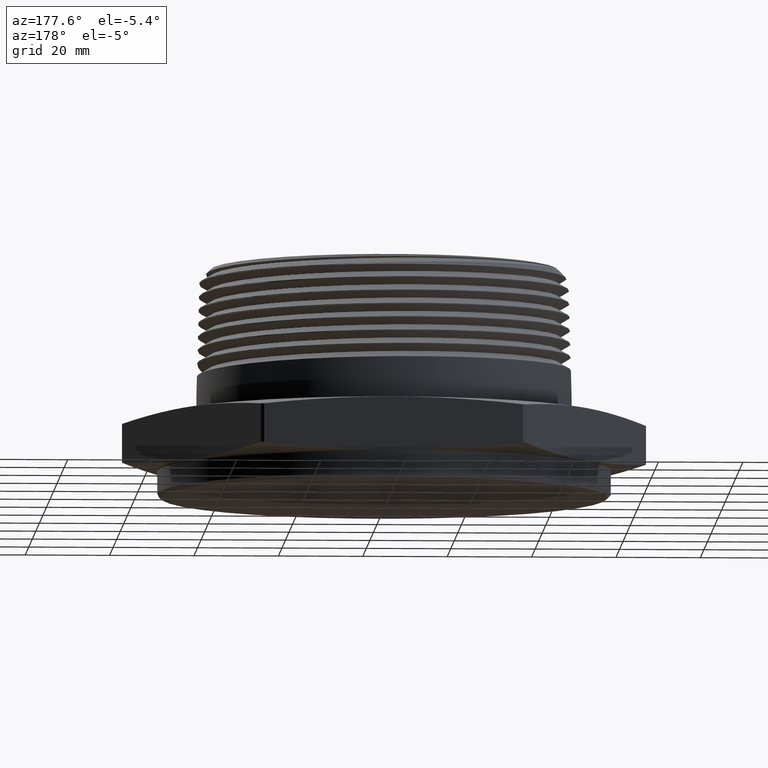
[diagram: clean part render]
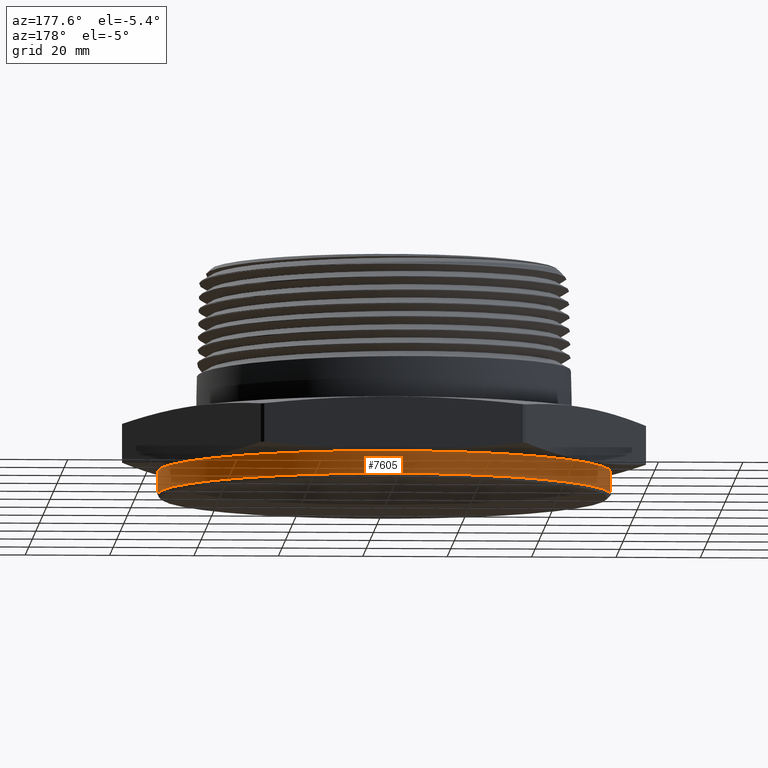
[diagram: same view with one face highlighted and labeled with its STEP entity id]
A machine part, auxiliary view. The second image highlights one B-rep face of the part: STEP entity #7605.
In plain terms, the highlighted cylindrical surface (partial cylindrical patch) has radius 53.721 mm, axis along (-0, -0, 1).
Its self-contained STEP definition (entity closure, byte-faithful):
#1075 = DIRECTION ( 'NONE',  ( 1.000000000000000000, 0.0000000000000000000, 0.0000000000000000000 ) ) ;
#1077 = CARTESIAN_POINT ( 'NONE',  ( 0.0000000000000000000, 0.0000000000000000000, -0.2500000000000000000 ) ) ;
#1078 = DIRECTION ( 'NONE',  ( -0.0000000000000000000, -0.0000000000000000000, 1.000000000000000000 ) ) ;
#1209 = CARTESIAN_POINT ( 'NONE',  ( 2.115000000000000200, 0.0000000000000000000, -0.008097840331950739700 ) ) ;
#1217 = CARTESIAN_POINT ( 'NONE',  ( -2.115000000000000200, 2.590127980196652600E-016, -0.2200000000000003100 ) ) ;
#1221 = CARTESIAN_POINT ( 'NONE',  ( -2.115000000000000200, 2.590127980196652600E-016, -0.008097840331950476000 ) ) ;
#1233 = CARTESIAN_POINT ( 'NONE',  ( 2.115000000000000200, 0.0000000000000000000, -0.2200000000000003100 ) ) ;
#1373 = EDGE_CURVE ( 'NONE', #7781, #7785, #7417, .T. ) ;
#1383 = EDGE_CURVE ( 'NONE', #7797, #7781, #7426, .T. ) ;
#1471 = EDGE_CURVE ( 'NONE', #7797, #7773, #7464, .T. ) ;
#1472 = EDGE_CURVE ( 'NONE', #7785, #7773, #7465, .T. ) ;
#1519 = AXIS2_PLACEMENT_3D ( 'NONE', #4737, #4738, #4739 ) ;
#1534 = AXIS2_PLACEMENT_3D ( 'NONE', #4859, #4860, #4861 ) ;
#1573 = AXIS2_PLACEMENT_3D ( 'NONE', #1077, #1078, #1075 ) ;
#4691 = DIRECTION ( 'NONE',  ( -0.0000000000000000000, -0.0000000000000000000, 1.000000000000000000 ) ) ;
#4703 = CARTESIAN_POINT ( 'NONE',  ( -2.115000000000000200, 2.590127980196652600E-016, -0.2500000000000000000 ) ) ;
#4737 = CARTESIAN_POINT ( 'NONE',  ( 0.0000000000000000000, 0.0000000000000000000, -0.2200000000000003100 ) ) ;
#4738 = DIRECTION ( 'NONE',  ( 0.0000000000000000000, 0.0000000000000000000, 1.000000000000000000 ) ) ;
#4739 = DIRECTION ( 'NONE',  ( -1.000000000000000000, 0.0000000000000000000, 0.0000000000000000000 ) ) ;
#4848 = CARTESIAN_POINT ( 'NONE',  ( 2.115000000000000200, 0.0000000000000000000, -0.2500000000000000000 ) ) ;
#4849 = DIRECTION ( 'NONE',  ( -0.0000000000000000000, -0.0000000000000000000, 1.000000000000000000 ) ) ;
#4859 = CARTESIAN_POINT ( 'NONE',  ( 0.0000000000000000000, 0.0000000000000000000, -0.008097840331950607900 ) ) ;
#4860 = DIRECTION ( 'NONE',  ( -6.274932739761922300E-017, -0.0000000000000000000, -1.000000000000000000 ) ) ;
#4861 = DIRECTION ( 'NONE',  ( -1.000000000000000000, 0.0000000000000000000, 6.256448567050247700E-017 ) ) ;
#7417 = LINE ( 'NONE', #4703, #7419 ) ;
#7419 = VECTOR ( 'NONE', #4691, 39.37007874015748100 ) ;
#7426 = CIRCLE ( 'NONE', #1519, 2.115000000000000200 ) ;
#7464 = LINE ( 'NONE', #4848, #7466 ) ;
#7465 = CIRCLE ( 'NONE', #1534, 2.115000000000000200 ) ;
#7466 = VECTOR ( 'NONE', #4849, 39.37007874015748100 ) ;
#7534 = FACE_OUTER_BOUND ( 'NONE', #7904, .T. ) ;
#7536 = CYLINDRICAL_SURFACE ( 'NONE', #1573, 2.115000000000000200 ) ;
#7605 = ADVANCED_FACE ( 'NONE', ( #7534 ), #7536, .T. ) ;
#7773 = VERTEX_POINT ( 'NONE', #1209 ) ;
#7781 = VERTEX_POINT ( 'NONE', #1217 ) ;
#7785 = VERTEX_POINT ( 'NONE', #1221 ) ;
#7797 = VERTEX_POINT ( 'NONE', #1233 ) ;
#7837 = ORIENTED_EDGE ( 'NONE', *, *, #1383, .T. ) ;
#7838 = ORIENTED_EDGE ( 'NONE', *, *, #1373, .T. ) ;
#7839 = ORIENTED_EDGE ( 'NONE', *, *, #1472, .T. ) ;
#7840 = ORIENTED_EDGE ( 'NONE', *, *, #1471, .F. ) ;
#7904 = EDGE_LOOP ( 'NONE', ( #7837, #7838, #7839, #7840 ) ) ;